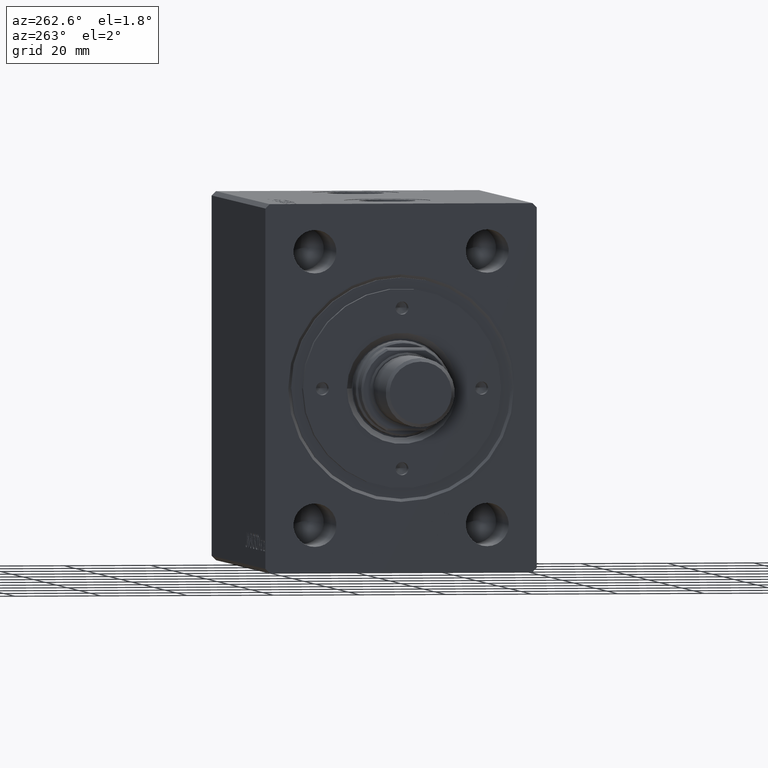
[diagram: clean part render]
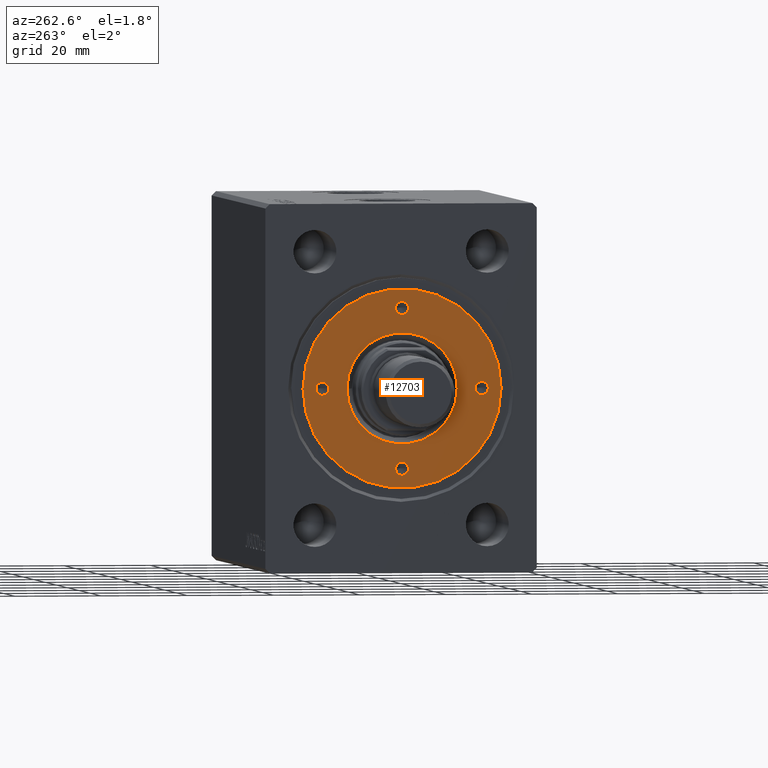
[diagram: same view with one face highlighted and labeled with its STEP entity id]
A machine part, auxiliary view. The second image highlights one B-rep face of the part: STEP entity #12703.
In plain terms, the highlighted planar face has unit normal (-1, 0, 0).
Its self-contained STEP definition (entity closure, byte-faithful):
#363 = CIRCLE ( 'NONE', #25468, 1.499999999999996891 ) ;
#541 = CARTESIAN_POINT ( 'NONE',  ( 19.99999999999999645, 0.000000000000000000, 9.999999999999998224 ) ) ;
#987 = FACE_OUTER_BOUND ( 'NONE', #37977, .T. ) ;
#993 = CIRCLE ( 'NONE', #42632, 12.79999999999997407 ) ;
#1329 = CARTESIAN_POINT ( 'NONE',  ( -1.499999999999996891, 18.50000000000000000, 9.999999999999998224 ) ) ;
#1426 = DIRECTION ( 'NONE',  ( 0.000000000000000000, 0.000000000000000000, 1.000000000000000000 ) ) ;
#1523 = EDGE_LOOP ( 'NONE', ( #44092, #19283 ) ) ;
#3120 = DIRECTION ( 'NONE',  ( -0.000000000000000000, -0.000000000000000000, 1.000000000000000000 ) ) ;
#3172 = CARTESIAN_POINT ( 'NONE',  ( 0.000000000000000000, 0.000000000000000000, 9.999999999999998224 ) ) ;
#3184 = CIRCLE ( 'NONE', #32596, 1.499999999999996891 ) ;
#3823 = DIRECTION ( 'NONE',  ( -0.000000000000000000, -0.000000000000000000, -1.000000000000000000 ) ) ;
#3997 = CARTESIAN_POINT ( 'NONE',  ( -1.499999999999996891, -18.50000000000000000, 9.999999999999998224 ) ) ;
#4241 = EDGE_CURVE ( 'NONE', #31365, #7628, #27094, .T. ) ;
#4688 = CARTESIAN_POINT ( 'NONE',  ( 0.000000000000000000, 0.000000000000000000, 9.999999999999998224 ) ) ;
#4799 = CARTESIAN_POINT ( 'NONE',  ( 0.000000000000000000, 0.000000000000000000, 9.999999999999998224 ) ) ;
#5086 = EDGE_CURVE ( 'NONE', #10945, #8222, #30018, .T. ) ;
#5170 = AXIS2_PLACEMENT_3D ( 'NONE', #27594, #28257, #41316 ) ;
#5338 = EDGE_LOOP ( 'NONE', ( #27224, #36953 ) ) ;
#5581 = EDGE_CURVE ( 'NONE', #26605, #42802, #40048, .T. ) ;
#5678 = EDGE_CURVE ( 'NONE', #7628, #31365, #17097, .T. ) ;
#5920 = ORIENTED_EDGE ( 'NONE', *, *, #19746, .F. ) ;
#6554 = ORIENTED_EDGE ( 'NONE', *, *, #42135, .T. ) ;
#6733 = DIRECTION ( 'NONE',  ( -0.000000000000000000, -0.000000000000000000, 1.000000000000000000 ) ) ;
#7256 = CARTESIAN_POINT ( 'NONE',  ( -19.99999999999999645, 1.836970198721027222E-16, 9.999999999999998224 ) ) ;
#7283 = CARTESIAN_POINT ( 'NONE',  ( 0.000000000000000000, 18.50000000000000000, 9.999999999999998224 ) ) ;
#7537 = CARTESIAN_POINT ( 'NONE',  ( -17.00000000000000000, 0.000000000000000000, 9.999999999999998224 ) ) ;
#7628 = VERTEX_POINT ( 'NONE', #7256 ) ;
#8222 = VERTEX_POINT ( 'NONE', #1329 ) ;
#8280 = CARTESIAN_POINT ( 'NONE',  ( 18.50000000000000000, 0.000000000000000000, 9.999999999999998224 ) ) ;
#8478 = AXIS2_PLACEMENT_3D ( 'NONE', #4688, #3823, #15029 ) ;
#8604 = DIRECTION ( 'NONE',  ( 1.000000000000000000, 0.000000000000000000, 0.000000000000000000 ) ) ;
#8870 = DIRECTION ( 'NONE',  ( 1.000000000000000000, 0.000000000000000000, 0.000000000000000000 ) ) ;
#9469 = CIRCLE ( 'NONE', #5170, 1.499999999999997780 ) ;
#9470 = EDGE_LOOP ( 'NONE', ( #31595, #5920 ) ) ;
#10562 = CARTESIAN_POINT ( 'NONE',  ( -18.50000000000000000, 0.000000000000000000, 9.999999999999998224 ) ) ;
#10614 = AXIS2_PLACEMENT_3D ( 'NONE', #29101, #12024, #8870 ) ;
#10945 = VERTEX_POINT ( 'NONE', #31886 ) ;
#10991 = DIRECTION ( 'NONE',  ( 1.000000000000000000, 0.000000000000000000, 0.000000000000000000 ) ) ;
#11765 = DIRECTION ( 'NONE',  ( 1.000000000000000000, 0.000000000000000000, -0.000000000000000000 ) ) ;
#12024 = DIRECTION ( 'NONE',  ( -0.000000000000000000, -0.000000000000000000, 1.000000000000000000 ) ) ;
#12244 = EDGE_CURVE ( 'NONE', #37693, #32816, #41695, .T. ) ;
#12703 = ADVANCED_FACE ( 'NONE', ( #31794, #32011, #32230, #22103, #42338, #987 ), #14701, .T. ) ;
#12932 = DIRECTION ( 'NONE',  ( -0.000000000000000000, -0.000000000000000000, 1.000000000000000000 ) ) ;
#12951 = VERTEX_POINT ( 'NONE', #32835 ) ;
#13058 = VERTEX_POINT ( 'NONE', #3997 ) ;
#13291 = DIRECTION ( 'NONE',  ( -0.000000000000000000, -0.000000000000000000, -1.000000000000000000 ) ) ;
#13704 = CARTESIAN_POINT ( 'NONE',  ( 0.000000000000000000, -18.50000000000000000, 9.999999999999998224 ) ) ;
#14091 = CARTESIAN_POINT ( 'NONE',  ( 1.499999999999996891, -18.50000000000000000, 9.999999999999998224 ) ) ;
#14701 = PLANE ( 'NONE',  #35944 ) ;
#15029 = DIRECTION ( 'NONE',  ( 1.000000000000000000, 0.000000000000000000, 0.000000000000000000 ) ) ;
#15363 = CIRCLE ( 'NONE', #31179, 23.00000000000000000 ) ;
#15575 = CARTESIAN_POINT ( 'NONE',  ( 0.000000000000000000, 0.000000000000000000, 9.999999999999998224 ) ) ;
#16837 = DIRECTION ( 'NONE',  ( 1.000000000000000000, 0.000000000000000000, 0.000000000000000000 ) ) ;
#17097 = CIRCLE ( 'NONE', #35758, 1.499999999999997780 ) ;
#17619 = DIRECTION ( 'NONE',  ( -0.000000000000000000, -0.000000000000000000, 1.000000000000000000 ) ) ;
#19283 = ORIENTED_EDGE ( 'NONE', *, *, #5678, .F. ) ;
#19526 = CARTESIAN_POINT ( 'NONE',  ( 0.000000000000000000, -18.50000000000000000, 9.999999999999998224 ) ) ;
#19746 = EDGE_CURVE ( 'NONE', #32816, #37693, #9469, .T. ) ;
#19888 = CARTESIAN_POINT ( 'NONE',  ( 12.79999999999997407, 0.000000000000000000, 9.999999999999998224 ) ) ;
#20778 = CARTESIAN_POINT ( 'NONE',  ( 0.000000000000000000, 0.000000000000000000, 9.999999999999998224 ) ) ;
#20885 = CARTESIAN_POINT ( 'NONE',  ( 23.00000000000000000, 2.816687638038912352E-15, 9.999999999999998224 ) ) ;
#21987 = DIRECTION ( 'NONE',  ( -0.000000000000000000, -0.000000000000000000, 1.000000000000000000 ) ) ;
#22091 = DIRECTION ( 'NONE',  ( 0.000000000000000000, 0.000000000000000000, 1.000000000000000000 ) ) ;
#22103 = FACE_BOUND ( 'NONE', #5338, .T. ) ;
#22214 = DIRECTION ( 'NONE',  ( 1.000000000000000000, 0.000000000000000000, 0.000000000000000000 ) ) ;
#22296 = ORIENTED_EDGE ( 'NONE', *, *, #40495, .F. ) ;
#22739 = ORIENTED_EDGE ( 'NONE', *, *, #37853, .T. ) ;
#22811 = CARTESIAN_POINT ( 'NONE',  ( 0.000000000000000000, 18.50000000000000000, 9.999999999999998224 ) ) ;
#22813 = CIRCLE ( 'NONE', #39297, 23.00000000000000000 ) ;
#22847 = VERTEX_POINT ( 'NONE', #20885 ) ;
#23781 = ORIENTED_EDGE ( 'NONE', *, *, #24233, .T. ) ;
#24233 = EDGE_CURVE ( 'NONE', #12951, #22847, #22813, .T. ) ;
#24273 = DIRECTION ( 'NONE',  ( 1.000000000000000000, 0.000000000000000000, 0.000000000000000000 ) ) ;
#25468 = AXIS2_PLACEMENT_3D ( 'NONE', #7283, #17619, #40546 ) ;
#26141 = ORIENTED_EDGE ( 'NONE', *, *, #5581, .T. ) ;
#26605 = VERTEX_POINT ( 'NONE', #28052 ) ;
#27068 = DIRECTION ( 'NONE',  ( 1.000000000000000000, 0.000000000000000000, 0.000000000000000000 ) ) ;
#27094 = CIRCLE ( 'NONE', #10614, 1.499999999999997780 ) ;
#27224 = ORIENTED_EDGE ( 'NONE', *, *, #35498, .F. ) ;
#27352 = AXIS2_PLACEMENT_3D ( 'NONE', #8280, #21987, #22214 ) ;
#27594 = CARTESIAN_POINT ( 'NONE',  ( 18.50000000000000000, 0.000000000000000000, 9.999999999999998224 ) ) ;
#28052 = CARTESIAN_POINT ( 'NONE',  ( -12.79999999999997407, 1.567547902908609029E-15, 9.999999999999998224 ) ) ;
#28257 = DIRECTION ( 'NONE',  ( -0.000000000000000000, -0.000000000000000000, 1.000000000000000000 ) ) ;
#29101 = CARTESIAN_POINT ( 'NONE',  ( -18.50000000000000000, 0.000000000000000000, 9.999999999999998224 ) ) ;
#29231 = AXIS2_PLACEMENT_3D ( 'NONE', #19526, #3120, #16837 ) ;
#30018 = CIRCLE ( 'NONE', #38608, 1.499999999999996891 ) ;
#31179 = AXIS2_PLACEMENT_3D ( 'NONE', #20778, #44151, #27068 ) ;
#31365 = VERTEX_POINT ( 'NONE', #7537 ) ;
#31595 = ORIENTED_EDGE ( 'NONE', *, *, #12244, .F. ) ;
#31794 = FACE_BOUND ( 'NONE', #1523, .T. ) ;
#31886 = CARTESIAN_POINT ( 'NONE',  ( 1.499999999999996891, 18.50000000000000000, 9.999999999999998224 ) ) ;
#32011 = FACE_BOUND ( 'NONE', #36627, .T. ) ;
#32230 = FACE_BOUND ( 'NONE', #9470, .T. ) ;
#32596 = AXIS2_PLACEMENT_3D ( 'NONE', #13704, #6733, #10991 ) ;
#32816 = VERTEX_POINT ( 'NONE', #32910 ) ;
#32835 = CARTESIAN_POINT ( 'NONE',  ( -23.00000000000000000, 0.000000000000000000, 9.999999999999998224 ) ) ;
#32910 = CARTESIAN_POINT ( 'NONE',  ( 17.00000000000000000, 1.836970198721027222E-16, 9.999999999999998224 ) ) ;
#33259 = EDGE_LOOP ( 'NONE', ( #22739, #26141 ) ) ;
#33297 = DIRECTION ( 'NONE',  ( 1.000000000000000000, 0.000000000000000000, 0.000000000000000000 ) ) ;
#35498 = EDGE_CURVE ( 'NONE', #41952, #13058, #39969, .T. ) ;
#35758 = AXIS2_PLACEMENT_3D ( 'NONE', #10562, #37980, #24273 ) ;
#35944 = AXIS2_PLACEMENT_3D ( 'NONE', #4799, #1426, #11765 ) ;
#36627 = EDGE_LOOP ( 'NONE', ( #39496, #22296 ) ) ;
#36953 = ORIENTED_EDGE ( 'NONE', *, *, #41729, .F. ) ;
#37693 = VERTEX_POINT ( 'NONE', #541 ) ;
#37853 = EDGE_CURVE ( 'NONE', #42802, #26605, #993, .T. ) ;
#37977 = EDGE_LOOP ( 'NONE', ( #23781, #6554 ) ) ;
#37980 = DIRECTION ( 'NONE',  ( -0.000000000000000000, -0.000000000000000000, 1.000000000000000000 ) ) ;
#38608 = AXIS2_PLACEMENT_3D ( 'NONE', #22811, #12932, #39881 ) ;
#39297 = AXIS2_PLACEMENT_3D ( 'NONE', #15575, #22091, #8604 ) ;
#39496 = ORIENTED_EDGE ( 'NONE', *, *, #5086, .F. ) ;
#39881 = DIRECTION ( 'NONE',  ( 1.000000000000000000, 0.000000000000000000, 0.000000000000000000 ) ) ;
#39969 = CIRCLE ( 'NONE', #29231, 1.499999999999996891 ) ;
#40048 = CIRCLE ( 'NONE', #8478, 12.79999999999997407 ) ;
#40495 = EDGE_CURVE ( 'NONE', #8222, #10945, #363, .T. ) ;
#40546 = DIRECTION ( 'NONE',  ( 1.000000000000000000, 0.000000000000000000, 0.000000000000000000 ) ) ;
#41316 = DIRECTION ( 'NONE',  ( 1.000000000000000000, 0.000000000000000000, 0.000000000000000000 ) ) ;
#41695 = CIRCLE ( 'NONE', #27352, 1.499999999999997780 ) ;
#41729 = EDGE_CURVE ( 'NONE', #13058, #41952, #3184, .T. ) ;
#41952 = VERTEX_POINT ( 'NONE', #14091 ) ;
#42135 = EDGE_CURVE ( 'NONE', #22847, #12951, #15363, .T. ) ;
#42338 = FACE_BOUND ( 'NONE', #33259, .T. ) ;
#42632 = AXIS2_PLACEMENT_3D ( 'NONE', #3172, #13291, #33297 ) ;
#42802 = VERTEX_POINT ( 'NONE', #19888 ) ;
#44092 = ORIENTED_EDGE ( 'NONE', *, *, #4241, .F. ) ;
#44151 = DIRECTION ( 'NONE',  ( 0.000000000000000000, 0.000000000000000000, 1.000000000000000000 ) ) ;